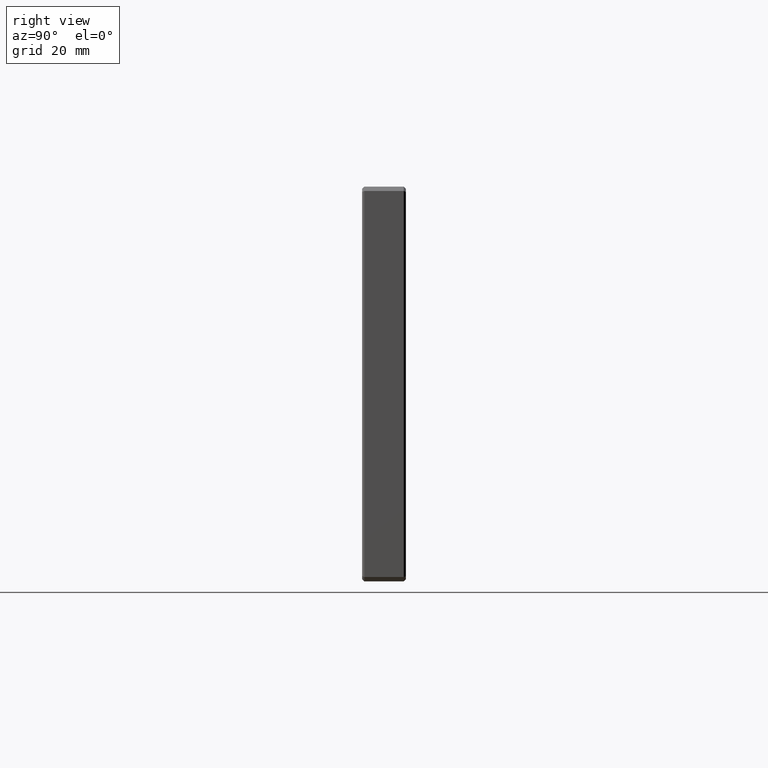
[diagram: clean part render]
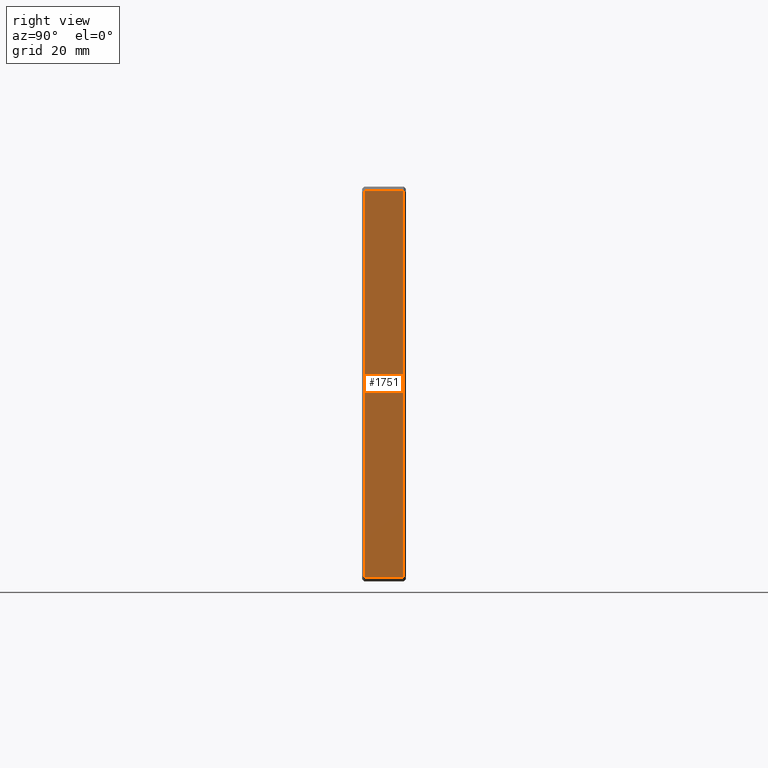
[diagram: same view with one face highlighted and labeled with its STEP entity id]
A machine part, right view. The second image highlights one B-rep face of the part: STEP entity #1751.
In plain terms, the highlighted planar face has unit normal (-1, 0, 0).
Its self-contained STEP definition (entity closure, byte-faithful):
#14 = LINE ( 'NONE', #388, #984 ) ;
#290 = VERTEX_POINT ( 'NONE', #935 ) ;
#336 = ORIENTED_EDGE ( 'NONE', *, *, #1858, .T. ) ;
#388 = CARTESIAN_POINT ( 'NONE',  ( 69.99999999999998579, 0.5000000000000004441, -45.00000000000000711 ) ) ;
#407 = DIRECTION ( 'NONE',  ( 0.000000000000000000, -1.000000000000000000, 0.000000000000000000 ) ) ;
#409 = VERTEX_POINT ( 'NONE', #1330 ) ;
#410 = CARTESIAN_POINT ( 'NONE',  ( 69.99999999999998579, 9.500000000000000000, -44.00000000000000711 ) ) ;
#424 = DIRECTION ( 'NONE',  ( 0.000000000000000000, 0.000000000000000000, -1.000000000000000000 ) ) ;
#447 = VERTEX_POINT ( 'NONE', #410 ) ;
#470 = EDGE_LOOP ( 'NONE', ( #780, #336, #753, #915 ) ) ;
#544 = PLANE ( 'NONE',  #1201 ) ;
#647 = VECTOR ( 'NONE', #407, 1000.000000000000000 ) ;
#664 = CARTESIAN_POINT ( 'NONE',  ( 69.99999999999998579, 0.5000000000000004441, 43.99999999999999289 ) ) ;
#753 = ORIENTED_EDGE ( 'NONE', *, *, #866, .T. ) ;
#778 = LINE ( 'NONE', #2373, #2278 ) ;
#780 = ORIENTED_EDGE ( 'NONE', *, *, #1042, .T. ) ;
#866 = EDGE_CURVE ( 'NONE', #290, #447, #778, .T. ) ;
#915 = ORIENTED_EDGE ( 'NONE', *, *, #1818, .T. ) ;
#935 = CARTESIAN_POINT ( 'NONE',  ( 69.99999999999998579, 0.5000000000000022204, -44.00000000000000711 ) ) ;
#984 = VECTOR ( 'NONE', #424, 1000.000000000000000 ) ;
#1042 = EDGE_CURVE ( 'NONE', #409, #1631, #1402, .T. ) ;
#1115 = DIRECTION ( 'NONE',  ( 0.000000000000000000, 1.000000000000000000, 0.000000000000000000 ) ) ;
#1201 = AXIS2_PLACEMENT_3D ( 'NONE', #1954, #2540, #1932 ) ;
#1330 = CARTESIAN_POINT ( 'NONE',  ( 69.99999999999998579, 9.499999999999998224, 43.99999999999999289 ) ) ;
#1402 = LINE ( 'NONE', #2195, #647 ) ;
#1631 = VERTEX_POINT ( 'NONE', #664 ) ;
#1751 = ADVANCED_FACE ( 'NONE', ( #2343 ), #544, .F. ) ;
#1760 = CARTESIAN_POINT ( 'NONE',  ( 69.99999999999998579, 9.500000000000000000, 43.99999999999996447 ) ) ;
#1818 = EDGE_CURVE ( 'NONE', #447, #409, #2367, .T. ) ;
#1858 = EDGE_CURVE ( 'NONE', #1631, #290, #14, .T. ) ;
#1932 = DIRECTION ( 'NONE',  ( 0.000000000000000000, 0.000000000000000000, 1.000000000000000000 ) ) ;
#1954 = CARTESIAN_POINT ( 'NONE',  ( 69.99999999999998579, 10.00000000000000000, -45.00000000000000711 ) ) ;
#1988 = VECTOR ( 'NONE', #2564, 1000.000000000000000 ) ;
#2195 = CARTESIAN_POINT ( 'NONE',  ( 69.99999999999998579, 10.00000000000000000, 43.99999999999999289 ) ) ;
#2278 = VECTOR ( 'NONE', #1115, 1000.000000000000000 ) ;
#2343 = FACE_OUTER_BOUND ( 'NONE', #470, .T. ) ;
#2367 = LINE ( 'NONE', #1760, #1988 ) ;
#2373 = CARTESIAN_POINT ( 'NONE',  ( 69.99999999999998579, 10.00000000000000000, -44.00000000000000711 ) ) ;
#2540 = DIRECTION ( 'NONE',  ( -1.000000000000000000, 0.000000000000000000, 0.000000000000000000 ) ) ;
#2564 = DIRECTION ( 'NONE',  ( 0.000000000000000000, -0.000000000000000000, 1.000000000000000000 ) ) ;